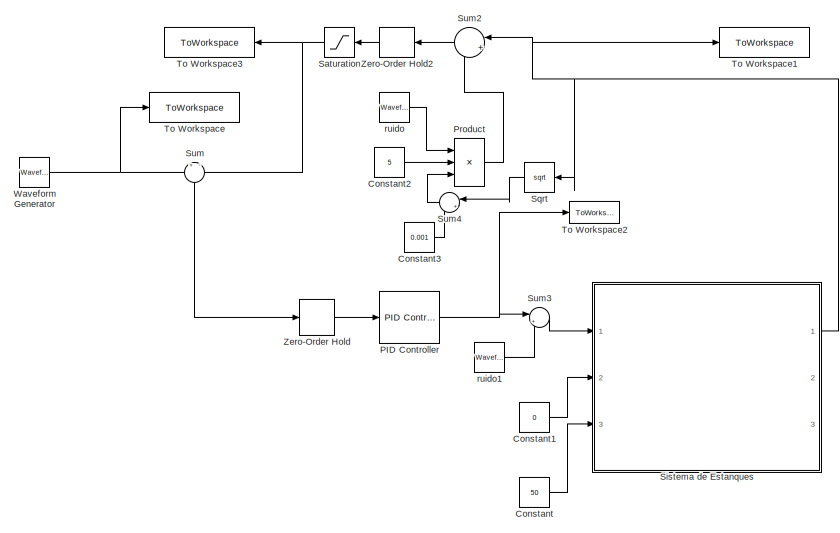
[diagram: root canvas - part 1/2, middle left region]
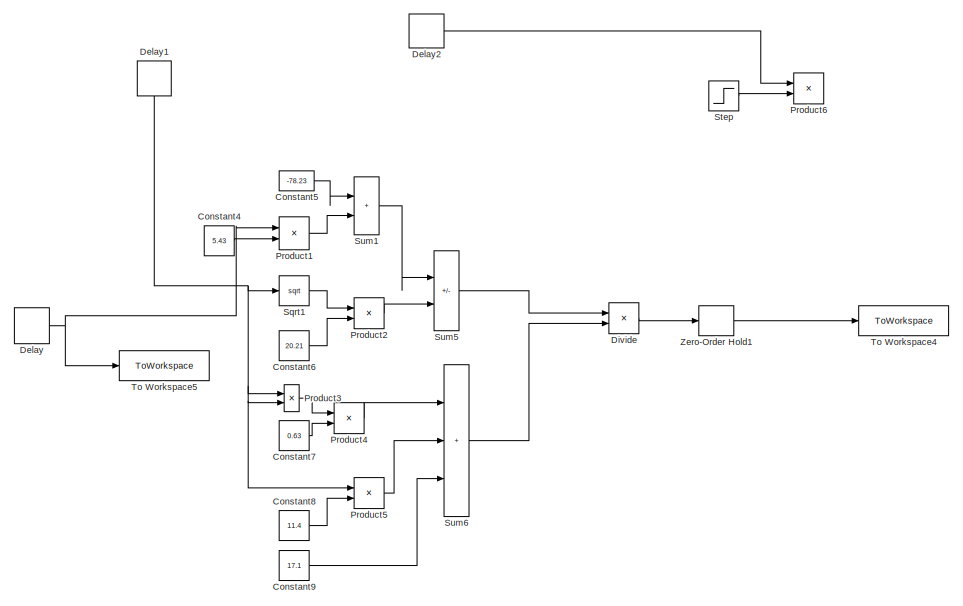
[diagram: root canvas - part 2/2, middle right region]
MODEL slx_602b4497ad94
KIND model
CONFIG AbsTol = auto
CONFIG EnableMultiTasking = on
CONFIG FixedStep = 0.05
CONFIG MaxStep = auto
CONFIG MinStep = auto
CONFIG RelTol = 1e-3
CONFIG SampleTimeConstraint = Unconstrained
CONFIG SolverName = ode3
CONFIG StartTime = 0.0
CONFIG StopTime = 3600*90
BLOCK [Constant] Constant
  Value = 50
BLOCK [Constant] Constant1
  Value = 0
BLOCK [Constant] Constant2
  Value = 5
BLOCK [Constant] Constant3
  Value = 0.001
BLOCK [Constant] Constant4
  Commented = on
  Value = 5.43
BLOCK [Constant] Constant5
  Commented = on
  Value = -78.23
BLOCK [Constant] Constant6
  Commented = on
  Value = 20.21
BLOCK [Constant] Constant7
  Commented = on
  Value = 0.63
BLOCK [Constant] Constant8
  Commented = on
  Value = 11.4
BLOCK [Constant] Constant9
  Commented = on
  Value = 17.1
BLOCK [Delay] Delay
  Commented = on
  DelayLength = 1
  InputPortMap = u0
  Ports = [1, 1]
  SampleTime = 1
BLOCK [Delay] Delay1
  Commented = on
  DelayLength = 1
  InitialCondition = 25
  InputPortMap = u0
  NameLocation = left
  Ports = [1, 1]
  SampleTime = 1
BLOCK [Delay] Delay2
  Commented = on
  InputPortMap = u0
  Ports = [1, 1]
  SampleTime = 5
BLOCK [Product] Divide
  Commented = on
  Inputs = */
  Ports = [2, 1]
BLOCK [Reference] PID Controller  REF=slpidlib/PID Controller
  Ports = [1, 1]
  SourceBlock = slpidlib/PID Controller
  SourceProductBaseCode = SL
  SourceType = PID 1dof
BLOCK [Product] Product
  Inputs = **/
  Ports = [3, 1]
BLOCK [Product] Product1
  Commented = on
  Ports = [2, 1]
BLOCK [Product] Product2
  Commented = on
  Ports = [2, 1]
BLOCK [Product] Product3
  Commented = on
  Ports = [2, 1]
BLOCK [Product] Product4
  Commented = on
  Ports = [2, 1]
BLOCK [Product] Product5
  Commented = on
  Ports = [2, 1]
BLOCK [Product] Product6
  Commented = on
  Ports = [2, 1]
BLOCK [Saturate] Saturation
  LowerLimit = 0
  UpperLimit = inf
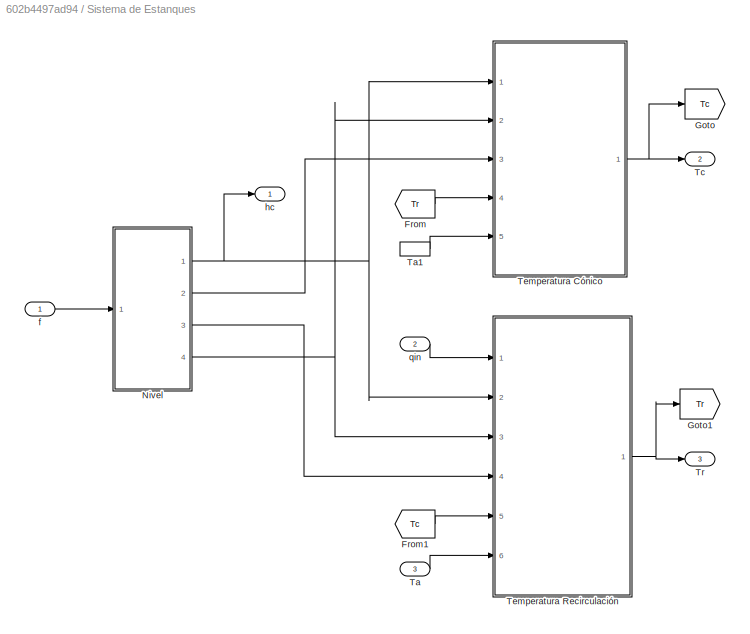
BLOCK [SubSystem] Sistema de Estanques
  Ports = [3, 3]
  RequestExecContextInheritance = off
BLOCK [From] Sistema de Estanques/From
  Commented = on
  GotoTag = Tr
BLOCK [From] Sistema de Estanques/From1
  Commented = on
  GotoTag = Tc
BLOCK [Goto] Sistema de Estanques/Goto
  Commented = on
  GotoTag = Tc
BLOCK [Goto] Sistema de Estanques/Goto1
  Commented = on
  GotoTag = Tr
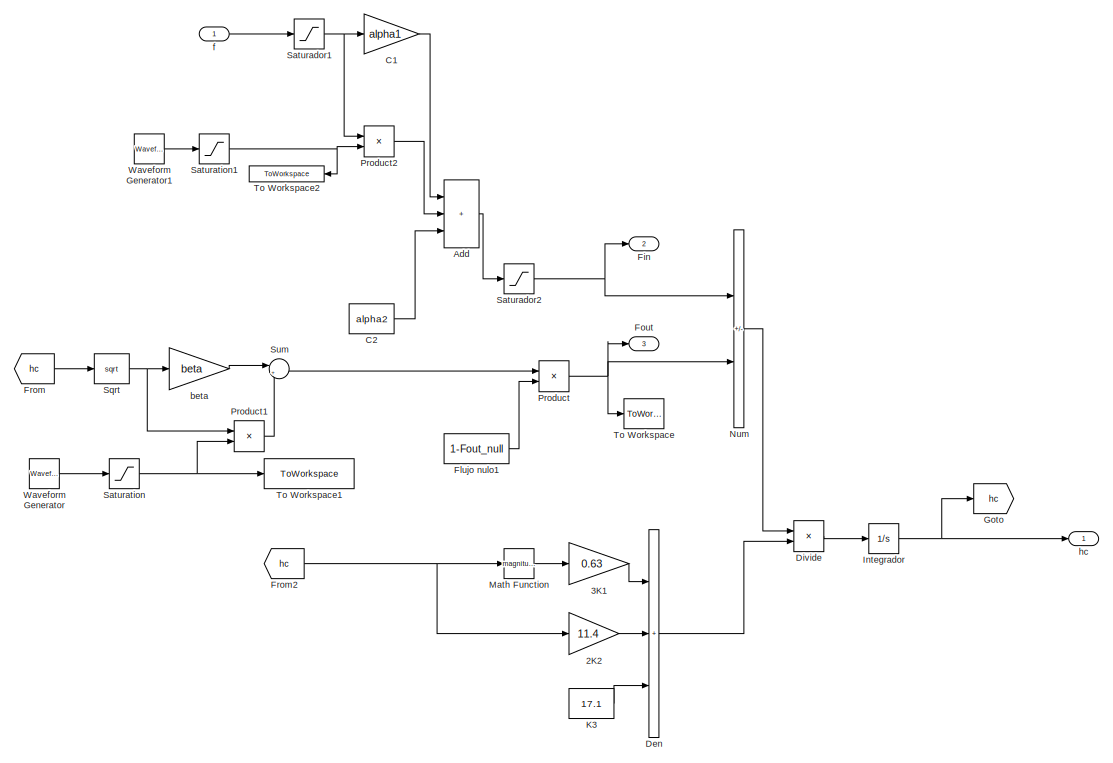
[diagram: Sistema de Estanques/Nivel - part 1/2, full width, middle band]
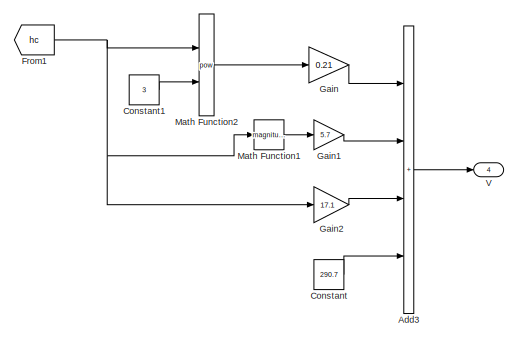
[diagram: Sistema de Estanques/Nivel - part 2/2, bottom center region]
BLOCK [SubSystem] Sistema de Estanques/Nivel
  Ports = [1, 4]
  RequestExecContextInheritance = off
BLOCK [Gain] Sistema de Estanques/Nivel/2K2
  Gain = 11.4
BLOCK [Gain] Sistema de Estanques/Nivel/3K1
  Gain = 0.63
BLOCK [Sum] Sistema de Estanques/Nivel/Add
  IconShape = rectangular
  Inputs = +++
  Ports = [3, 1]
BLOCK [Sum] Sistema de Estanques/Nivel/Add3
  Commented = on
  IconShape = rectangular
  Inputs = ++++
  Ports = [4, 1]
BLOCK [Gain] Sistema de Estanques/Nivel/C1
  Gain = alpha1
BLOCK [Constant] Sistema de Estanques/Nivel/C2
  Value = alpha2
BLOCK [Constant] Sistema de Estanques/Nivel/Constant
  Commented = on
  Value = 290.7
BLOCK [Constant] Sistema de Estanques/Nivel/Constant1
  Commented = on
  Value = 3
BLOCK [Sum] Sistema de Estanques/Nivel/Den
  IconShape = rectangular
  Inputs = +++
  Ports = [3, 1]
BLOCK [Product] Sistema de Estanques/Nivel/Divide
  Inputs = */
  Ports = [2, 1]
BLOCK [Outport] Sistema de Estanques/Nivel/Fin
  Port = 2
BLOCK [Constant] Sistema de Estanques/Nivel/Flujo nulo1
  Value = 1-Fout_null
BLOCK [Outport] Sistema de Estanques/Nivel/Fout
  Port = 3
BLOCK [From] Sistema de Estanques/Nivel/From
  GotoTag = hc
BLOCK [From] Sistema de Estanques/Nivel/From1
  Commented = on
  GotoTag = hc
BLOCK [From] Sistema de Estanques/Nivel/From2
  GotoTag = hc
BLOCK [Gain] Sistema de Estanques/Nivel/Gain
  Commented = on
  Gain = 0.21
BLOCK [Gain] Sistema de Estanques/Nivel/Gain1
  Commented = on
  Gain = 5.7
BLOCK [Gain] Sistema de Estanques/Nivel/Gain2
  Commented = on
  Gain = 17.1
BLOCK [Goto] Sistema de Estanques/Nivel/Goto
  GotoTag = hc
BLOCK [Integrator] Sistema de Estanques/Nivel/Integrador
  InitialCondition = h0+10^(-6)
  LimitOutput = on
  LowerSaturationLimit = 10^(-6)
  Ports = [1, 1]
  ZeroCross = off
BLOCK [Constant] Sistema de Estanques/Nivel/K3
  Value = 17.1
BLOCK [Math] Sistema de Estanques/Nivel/Math Function
  Operator = magnitude^2
  Ports = [1, 1]
  SignedPower = on
BLOCK [Math] Sistema de Estanques/Nivel/Math Function1
  Commented = on
  Operator = magnitude^2
  Ports = [1, 1]
  SignedPower = on
BLOCK [Math] Sistema de Estanques/Nivel/Math Function2
  Commented = on
  Operator = pow
  Ports = [2, 1]
  SignedPower = on
BLOCK [Sum] Sistema de Estanques/Nivel/Num
  IconShape = rectangular
  Inputs = +-
  Ports = [2, 1]
BLOCK [Product] Sistema de Estanques/Nivel/Product
  Ports = [2, 1]
BLOCK [Product] Sistema de Estanques/Nivel/Product1
  Ports = [2, 1]
BLOCK [Product] Sistema de Estanques/Nivel/Product2
  Ports = [2, 1]
BLOCK [Saturate] Sistema de Estanques/Nivel/Saturador1
  LowerLimit = 0
  UpperLimit = 100
  ZeroCross = off
BLOCK [Saturate] Sistema de Estanques/Nivel/Saturador2
  LowerLimit = 0
  UpperLimit = inf
  ZeroCross = off
BLOCK [Saturate] Sistema de Estanques/Nivel/Saturation
  LowerLimit = -1
  UpperLimit = 100
BLOCK [Saturate] Sistema de Estanques/Nivel/Saturation1
  LinearizeAsGain = off
  LowerLimit = -5
  UpperLimit = 0
BLOCK [Sqrt] Sistema de Estanques/Nivel/Sqrt
BLOCK [Sum] Sistema de Estanques/Nivel/Sum
  Inputs = |++
  Ports = [2, 1]
BLOCK [ToWorkspace] Sistema de Estanques/Nivel/To Workspace
  FixptAsFi = on
  MaxDataPoints = inf
  Ports = [1]
  SampleTime = -1
  SaveFormat = Timeseries
  VariableName = f_out
BLOCK [ToWorkspace] Sistema de Estanques/Nivel/To Workspace1
  FixptAsFi = on
  MaxDataPoints = inf
  Ports = [1]
  SampleTime = 1
  SaveFormat = Timeseries
  VariableName = coef_falla_1
BLOCK [ToWorkspace] Sistema de Estanques/Nivel/To Workspace2
  FixptAsFi = on
  MaxDataPoints = inf
  Ports = [1]
  SampleTime = -1
  SaveFormat = Timeseries
  VariableName = coef_falla_2
BLOCK [Outport] Sistema de Estanques/Nivel/V
  Port = 4
BLOCK [Reference] Sistema de Estanques/Nivel/Waveform Generator  REF=simulink/Sources/Waveform
Generator
  Ports = [0, 1]
  SourceBlock = simulink/Sources/Waveform\nGenerator
  SourceProductBaseCode = SL
  SourceType = WaveformGenerator
BLOCK [Reference] Sistema de Estanques/Nivel/Waveform Generator1  REF=simulink/Sources/Waveform
Generator
  Ports = [0, 1]
  SourceBlock = simulink/Sources/Waveform\nGenerator
  SourceProductBaseCode = SL
  SourceType = WaveformGenerator
BLOCK [Gain] Sistema de Estanques/Nivel/beta
  Gain = beta
BLOCK [Inport] Sistema de Estanques/Nivel/f
BLOCK [Outport] Sistema de Estanques/Nivel/hc
BLOCK [Inport] Sistema de Estanques/Ta
  Port = 3
BLOCK [InportShadow] Sistema de Estanques/Ta1
  Port = 3
BLOCK [Outport] Sistema de Estanques/Tc
  Port = 2
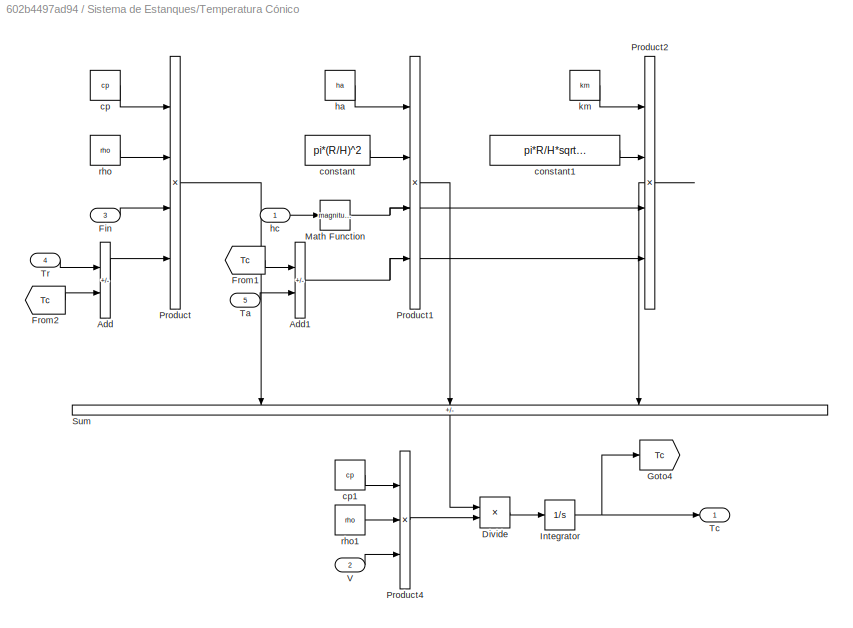
BLOCK [SubSystem] Sistema de Estanques/Temperatura Cónico
  Commented = on
  Ports = [5, 1]
  RequestExecContextInheritance = off
BLOCK [Sum] Sistema de Estanques/Temperatura Cónico/Add
  IconShape = rectangular
  Inputs = +-
  Ports = [2, 1]
BLOCK [Sum] Sistema de Estanques/Temperatura Cónico/Add1
  IconShape = rectangular
  Inputs = +-
  Ports = [2, 1]
BLOCK [Product] Sistema de Estanques/Temperatura Cónico/Divide
  Inputs = */
  Ports = [2, 1]
BLOCK [Inport] Sistema de Estanques/Temperatura Cónico/Fin
  Port = 3
BLOCK [From] Sistema de Estanques/Temperatura Cónico/From1
  GotoTag = Tc
BLOCK [From] Sistema de Estanques/Temperatura Cónico/From2
  GotoTag = Tc
BLOCK [Goto] Sistema de Estanques/Temperatura Cónico/Goto4
  GotoTag = Tc
BLOCK [Integrator] Sistema de Estanques/Temperatura Cónico/Integrator
  InitialCondition = T0c
  Ports = [1, 1]
BLOCK [Math] Sistema de Estanques/Temperatura Cónico/Math Function
  Operator = magnitude^2
  Ports = [1, 1]
  SignedPower = on
BLOCK [Product] Sistema de Estanques/Temperatura Cónico/Product
  Inputs = 4
  Ports = [4, 1]
BLOCK [Product] Sistema de Estanques/Temperatura Cónico/Product1
  Inputs = 4
  Ports = [4, 1]
BLOCK [Product] Sistema de Estanques/Temperatura Cónico/Product2
  Inputs = 4
  Ports = [4, 1]
BLOCK [Product] Sistema de Estanques/Temperatura Cónico/Product4
  Inputs = 3
  Ports = [3, 1]
BLOCK [Sum] Sistema de Estanques/Temperatura Cónico/Sum
  IconShape = rectangular
  Inputs = +--
  NameLocation = left
  Ports = [3, 1]
BLOCK [Inport] Sistema de Estanques/Temperatura Cónico/Ta
  Port = 5
BLOCK [Outport] Sistema de Estanques/Temperatura Cónico/Tc
BLOCK [Inport] Sistema de Estanques/Temperatura Cónico/Tr
  Port = 4
BLOCK [Inport] Sistema de Estanques/Temperatura Cónico/V
  Port = 2
BLOCK [Constant] Sistema de Estanques/Temperatura Cónico/constant
  Value = pi*(R/H)^2
BLOCK [Constant] Sistema de Estanques/Temperatura Cónico/constant1
  Value = pi*R/H*sqrt((R/H)^2+1)/e
BLOCK [Constant] Sistema de Estanques/Temperatura Cónico/cp
  Value = cp
BLOCK [Constant] Sistema de Estanques/Temperatura Cónico/cp1
  Value = cp
BLOCK [Constant] Sistema de Estanques/Temperatura Cónico/ha
  Value = ha
BLOCK [Inport] Sistema de Estanques/Temperatura Cónico/hc
BLOCK [Constant] Sistema de Estanques/Temperatura Cónico/km
  Value = km
BLOCK [Constant] Sistema de Estanques/Temperatura Cónico/rho
  Value = rho
BLOCK [Constant] Sistema de Estanques/Temperatura Cónico/rho1
  Value = rho
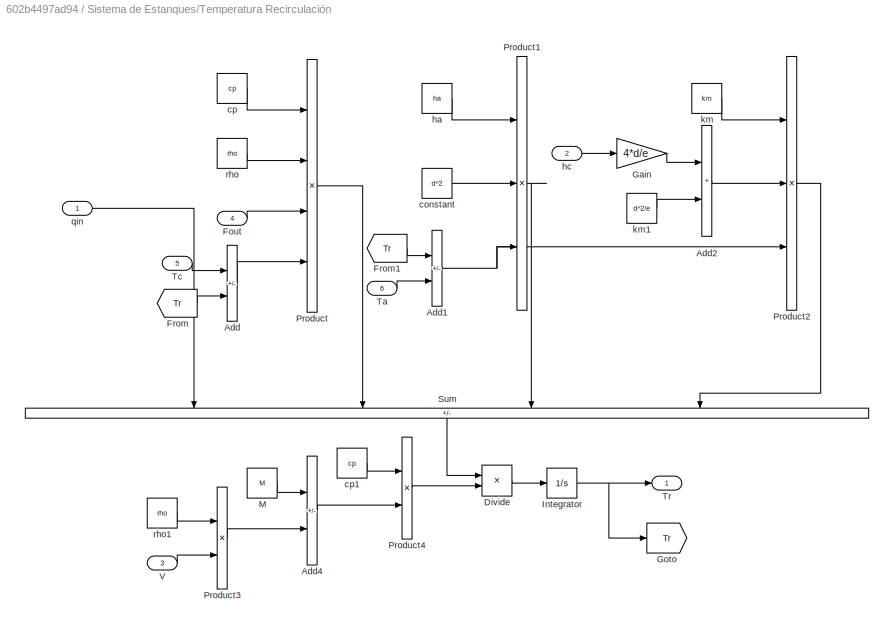
BLOCK [SubSystem] Sistema de Estanques/Temperatura Recirculación
  Commented = on
  Ports = [6, 1]
  RequestExecContextInheritance = off
BLOCK [Sum] Sistema de Estanques/Temperatura Recirculación/Add
  IconShape = rectangular
  Inputs = +-
  Ports = [2, 1]
BLOCK [Sum] Sistema de Estanques/Temperatura Recirculación/Add1
  IconShape = rectangular
  Inputs = +-
  Ports = [2, 1]
BLOCK [Sum] Sistema de Estanques/Temperatura Recirculación/Add2
  IconShape = rectangular
  Ports = [2, 1]
BLOCK [Sum] Sistema de Estanques/Temperatura Recirculación/Add4
  IconShape = rectangular
  Inputs = +-
  Ports = [2, 1]
BLOCK [Product] Sistema de Estanques/Temperatura Recirculación/Divide
  Inputs = */
  Ports = [2, 1]
BLOCK [Inport] Sistema de Estanques/Temperatura Recirculación/Fout
  Port = 4
BLOCK [From] Sistema de Estanques/Temperatura Recirculación/From
  GotoTag = Tr
BLOCK [From] Sistema de Estanques/Temperatura Recirculación/From1
  GotoTag = Tr
BLOCK [Gain] Sistema de Estanques/Temperatura Recirculación/Gain
  Gain = 4*d/e
BLOCK [Goto] Sistema de Estanques/Temperatura Recirculación/Goto
  GotoTag = Tr
BLOCK [Integrator] Sistema de Estanques/Temperatura Recirculación/Integrator
  InitialCondition = T0r
  Ports = [1, 1]
BLOCK [Constant] Sistema de Estanques/Temperatura Recirculación/M
  Value = M
BLOCK [Product] Sistema de Estanques/Temperatura Recirculación/Product
  Inputs = 4
  Ports = [4, 1]
BLOCK [Product] Sistema de Estanques/Temperatura Recirculación/Product1
  Inputs = 3
  Ports = [3, 1]
BLOCK [Product] Sistema de Estanques/Temperatura Recirculación/Product2
  Inputs = 3
  Ports = [3, 1]
BLOCK [Product] Sistema de Estanques/Temperatura Recirculación/Product3
  Ports = [2, 1]
BLOCK [Product] Sistema de Estanques/Temperatura Recirculación/Product4
  Ports = [2, 1]
BLOCK [Sum] Sistema de Estanques/Temperatura Recirculación/Sum
  IconShape = rectangular
  Inputs = ++--
  NameLocation = left
  Ports = [4, 1]
BLOCK [Inport] Sistema de Estanques/Temperatura Recirculación/Ta
  Port = 6
BLOCK [Inport] Sistema de Estanques/Temperatura Recirculación/Tc
  Port = 5
BLOCK [Outport] Sistema de Estanques/Temperatura Recirculación/Tr
BLOCK [Inport] Sistema de Estanques/Temperatura Recirculación/V
  Port = 3
BLOCK [Constant] Sistema de Estanques/Temperatura Recirculación/constant
  Value = d^2
BLOCK [Constant] Sistema de Estanques/Temperatura Recirculación/cp
  Value = cp
BLOCK [Constant] Sistema de Estanques/Temperatura Recirculación/cp1
  Value = cp
BLOCK [Constant] Sistema de Estanques/Temperatura Recirculación/ha
  Value = ha
BLOCK [Inport] Sistema de Estanques/Temperatura Recirculación/hc
  Port = 2
BLOCK [Constant] Sistema de Estanques/Temperatura Recirculación/km
  Value = km
BLOCK [Constant] Sistema de Estanques/Temperatura Recirculación/km1
  Value = d^2/e
BLOCK [Inport] Sistema de Estanques/Temperatura Recirculación/qin
BLOCK [Constant] Sistema de Estanques/Temperatura Recirculación/rho
  Value = rho
BLOCK [Constant] Sistema de Estanques/Temperatura Recirculación/rho1
  Value = rho
BLOCK [Outport] Sistema de Estanques/Tr
  Port = 3
BLOCK [Inport] Sistema de Estanques/f
BLOCK [Outport] Sistema de Estanques/hc
BLOCK [Inport] Sistema de Estanques/qin
  Port = 2
BLOCK [Sqrt] Sqrt
BLOCK [Sqrt] Sqrt1
  Commented = on
BLOCK [Step] Step
  After = 0
  Before = 1
  Commented = on
  SampleTime = 0
  Time = 5
BLOCK [Sum] Sum
  Inputs = +|-
  NameLocation = left
  Ports = [2, 1]
BLOCK [Sum] Sum1
  Commented = on
  IconShape = rectangular
  Inputs = |++
  Ports = [2, 1]
BLOCK [Sum] Sum2
  Inputs = |++
  Ports = [2, 1]
BLOCK [Sum] Sum3
  Inputs = |++
  NameLocation = top
  Ports = [2, 1]
BLOCK [Sum] Sum4
  Inputs = |++
  Ports = [2, 1]
BLOCK [Sum] Sum5
  Commented = on
  IconShape = rectangular
  Inputs = |+-
  Ports = [2, 1]
BLOCK [Sum] Sum6
  Commented = on
  IconShape = rectangular
  Inputs = |+++
  Ports = [3, 1]
BLOCK [ToWorkspace] To Workspace
  FixptAsFi = on
  MaxDataPoints = inf
  NameLocation = top
  Ports = [1]
  SampleTime = 1
  SaveFormat = Timeseries
  VariableName = REFERENCIA
BLOCK [ToWorkspace] To Workspace1
  FixptAsFi = on
  MaxDataPoints = inf
  Ports = [1]
  SampleTime = 1
  SaveFormat = Timeseries
  VariableName = Actual_hc
BLOCK [ToWorkspace] To Workspace2
  FixptAsFi = on
  MaxDataPoints = inf
  Ports = [1]
  SampleTime = 1
  SaveFormat = Timeseries
  VariableName = f_pid
BLOCK [ToWorkspace] To Workspace3
  FixptAsFi = on
  MaxDataPoints = inf
  Ports = [1]
  SampleTime = 1
  SaveFormat = Timeseries
  VariableName = Mesuared_hc
BLOCK [ToWorkspace] To Workspace4
  Commented = on
  FixptAsFi = on
  MaxDataPoints = inf
  Ports = [1]
  SampleTime = -1
  SaveFormat = Timeseries
  VariableName = hc_dot_hat
BLOCK [ToWorkspace] To Workspace5
  Commented = on
  FixptAsFi = on
  MaxDataPoints = inf
  Ports = [1]
  SampleTime = -1
  SaveFormat = Timeseries
  VariableName = fm2
BLOCK [Reference] Waveform Generator  REF=simulink/Sources/Waveform
Generator
  Ports = [0, 1]
  SourceBlock = simulink/Sources/Waveform\nGenerator
  SourceProductBaseCode = SL
  SourceType = WaveformGenerator
BLOCK [ZeroOrderHold] Zero-Order Hold
  SampleTime = 5
BLOCK [ZeroOrderHold] Zero-Order Hold1
  Commented = on
  SampleTime = 5
BLOCK [ZeroOrderHold] Zero-Order Hold2
  SampleTime = 5
BLOCK [Reference] ruido  REF=simulink/Sources/Waveform
Generator
  Ports = [0, 1]
  SourceBlock = simulink/Sources/Waveform\nGenerator
  SourceProductBaseCode = SL
  SourceType = WaveformGenerator
BLOCK [Reference] ruido1  REF=simulink/Sources/Waveform
Generator
  Ports = [0, 1]
  SourceBlock = simulink/Sources/Waveform\nGenerator
  SourceProductBaseCode = SL
  SourceType = WaveformGenerator
LINE Constant1:1 -> Sistema de Estanques:2
LINE Constant2:1 -> Product:2
LINE Constant3:1 -> Sum4:2
LINE Constant4:1 -> Product1:2
LINE Constant5:1 -> Sum1:1
LINE Constant6:1 -> Product2:2
LINE Constant7:1 -> Product4:2
LINE Constant8:1 -> Product5:2
LINE Constant9:1 -> Sum6:3
LINE Constant:1 -> Sistema de Estanques:3
NET Delay1:1 -> Product3:1, Product3:2, Product5:1, Sqrt1:1
LINE Delay2:1 -> Product6:1
NET Delay:1 -> Product1:1, To Workspace5:1
LINE Divide:1 -> Zero-Order Hold1:1
NET PID Controller:1 -> Sum3:1, To Workspace2:1
LINE Product1:1 -> Sum1:2
LINE Product2:1 -> Sum5:2
LINE Product3:1 -> Product4:1
LINE Product4:1 -> Sum6:1
LINE Product5:1 -> Sum6:2
LINE Product:1 -> Sum2:2
NET Saturation:1 -> Sum:2, To Workspace3:1
LINE Sistema de Estanques/From1:1 -> Sistema de Estanques/Temperatura Recirculación:5
LINE Sistema de Estanques/From:1 -> Sistema de Estanques/Temperatura Cónico:4
LINE Sistema de Estanques/Nivel/2K2:1 -> Sistema de Estanques/Nivel/Den:2
LINE Sistema de Estanques/Nivel/3K1:1 -> Sistema de Estanques/Nivel/Den:1
LINE Sistema de Estanques/Nivel/Add3:1 -> Sistema de Estanques/Nivel/V:1
LINE Sistema de Estanques/Nivel/Add:1 -> Sistema de Estanques/Nivel/Saturador2:1
LINE Sistema de Estanques/Nivel/C1:1 -> Sistema de Estanques/Nivel/Add:1
LINE Sistema de Estanques/Nivel/C2:1 -> Sistema de Estanques/Nivel/Add:3
LINE Sistema de Estanques/Nivel/Constant1:1 -> Sistema de Estanques/Nivel/Math Function2:2
LINE Sistema de Estanques/Nivel/Constant:1 -> Sistema de Estanques/Nivel/Add3:4
LINE Sistema de Estanques/Nivel/Den:1 -> Sistema de Estanques/Nivel/Divide:2
LINE Sistema de Estanques/Nivel/Divide:1 -> Sistema de Estanques/Nivel/Integrador:1
LINE Sistema de Estanques/Nivel/Flujo nulo1:1 -> Sistema de Estanques/Nivel/Product:2
NET Sistema de Estanques/Nivel/From1:1 -> Sistema de Estanques/Nivel/Gain2:1, Sistema de Estanques/Nivel/Math Function1:1, Sistema de Estanques/Nivel/Math Function2:1
NET Sistema de Estanques/Nivel/From2:1 -> Sistema de Estanques/Nivel/2K2:1, Sistema de Estanques/Nivel/Math Function:1
LINE Sistema de Estanques/Nivel/From:1 -> Sistema de Estanques/Nivel/Sqrt:1
LINE Sistema de Estanques/Nivel/Gain1:1 -> Sistema de Estanques/Nivel/Add3:2
LINE Sistema de Estanques/Nivel/Gain2:1 -> Sistema de Estanques/Nivel/Add3:3
LINE Sistema de Estanques/Nivel/Gain:1 -> Sistema de Estanques/Nivel/Add3:1
NET Sistema de Estanques/Nivel/Integrador:1 -> Sistema de Estanques/Nivel/Goto:1, Sistema de Estanques/Nivel/hc:1
LINE Sistema de Estanques/Nivel/K3:1 -> Sistema de Estanques/Nivel/Den:3
LINE Sistema de Estanques/Nivel/Math Function1:1 -> Sistema de Estanques/Nivel/Gain1:1
LINE Sistema de Estanques/Nivel/Math Function2:1 -> Sistema de Estanques/Nivel/Gain:1
LINE Sistema de Estanques/Nivel/Math Function:1 -> Sistema de Estanques/Nivel/3K1:1
LINE Sistema de Estanques/Nivel/Num:1 -> Sistema de Estanques/Nivel/Divide:1
LINE Sistema de Estanques/Nivel/Product1:1 -> Sistema de Estanques/Nivel/Sum:2
LINE Sistema de Estanques/Nivel/Product2:1 -> Sistema de Estanques/Nivel/Add:2
NET Sistema de Estanques/Nivel/Product:1 -> Sistema de Estanques/Nivel/Fout:1, Sistema de Estanques/Nivel/Num:2, Sistema de Estanques/Nivel/To Workspace:1
NET Sistema de Estanques/Nivel/Saturador1:1 -> Sistema de Estanques/Nivel/C1:1, Sistema de Estanques/Nivel/Product2:1
NET Sistema de Estanques/Nivel/Saturador2:1 -> Sistema de Estanques/Nivel/Fin:1, Sistema de Estanques/Nivel/Num:1
NET Sistema de Estanques/Nivel/Saturation1:1 -> Sistema de Estanques/Nivel/Product2:2, Sistema de Estanques/Nivel/To Workspace2:1
NET Sistema de Estanques/Nivel/Saturation:1 -> Sistema de Estanques/Nivel/Product1:2, Sistema de Estanques/Nivel/To Workspace1:1
NET Sistema de Estanques/Nivel/Sqrt:1 -> Sistema de Estanques/Nivel/Product1:1, Sistema de Estanques/Nivel/beta:1
LINE Sistema de Estanques/Nivel/Sum:1 -> Sistema de Estanques/Nivel/Product:1
LINE Sistema de Estanques/Nivel/Waveform Generator1:1 -> Sistema de Estanques/Nivel/Saturation1:1
LINE Sistema de Estanques/Nivel/Waveform Generator:1 -> Sistema de Estanques/Nivel/Saturation:1
LINE Sistema de Estanques/Nivel/beta:1 -> Sistema de Estanques/Nivel/Sum:1
LINE Sistema de Estanques/Nivel/f:1 -> Sistema de Estanques/Nivel/Saturador1:1
NET Sistema de Estanques/Nivel:1 -> Sistema de Estanques/Temperatura Cónico:1, Sistema de Estanques/Temperatura Recirculación:2, Sistema de Estanques/hc:1
LINE Sistema de Estanques/Nivel:2 -> Sistema de Estanques/Temperatura Cónico:3
LINE Sistema de Estanques/Nivel:3 -> Sistema de Estanques/Temperatura Recirculación:4
NET Sistema de Estanques/Nivel:4 -> Sistema de Estanques/Temperatura Cónico:2, Sistema de Estanques/Temperatura Recirculación:3
LINE Sistema de Estanques/Ta1:1 -> Sistema de Estanques/Temperatura Cónico:5
LINE Sistema de Estanques/Ta:1 -> Sistema de Estanques/Temperatura Recirculación:6
NET Sistema de Estanques/Temperatura Cónico/Add1:1 -> Sistema de Estanques/Temperatura Cónico/Product1:4, Sistema de Estanques/Temperatura Cónico/Product2:4
LINE Sistema de Estanques/Temperatura Cónico/Add:1 -> Sistema de Estanques/Temperatura Cónico/Product:4
LINE Sistema de Estanques/Temperatura Cónico/Divide:1 -> Sistema de Estanques/Temperatura Cónico/Integrator:1
LINE Sistema de Estanques/Temperatura Cónico/Fin:1 -> Sistema de Estanques/Temperatura Cónico/Product:3
LINE Sistema de Estanques/Temperatura Cónico/From1:1 -> Sistema de Estanques/Temperatura Cónico/Add1:1
LINE Sistema de Estanques/Temperatura Cónico/From2:1 -> Sistema de Estanques/Temperatura Cónico/Add:2
NET Sistema de Estanques/Temperatura Cónico/Integrator:1 -> Sistema de Estanques/Temperatura Cónico/Goto4:1, Sistema de Estanques/Temperatura Cónico/Tc:1
NET Sistema de Estanques/Temperatura Cónico/Math Function:1 -> Sistema de Estanques/Temperatura Cónico/Product1:3, Sistema de Estanques/Temperatura Cónico/Product2:3
LINE Sistema de Estanques/Temperatura Cónico/Product1:1 -> Sistema de Estanques/Temperatura Cónico/Sum:2
LINE Sistema de Estanques/Temperatura Cónico/Product2:1 -> Sistema de Estanques/Temperatura Cónico/Sum:3
LINE Sistema de Estanques/Temperatura Cónico/Product4:1 -> Sistema de Estanques/Temperatura Cónico/Divide:2
LINE Sistema de Estanques/Temperatura Cónico/Product:1 -> Sistema de Estanques/Temperatura Cónico/Sum:1
LINE Sistema de Estanques/Temperatura Cónico/Sum:1 -> Sistema de Estanques/Temperatura Cónico/Divide:1
LINE Sistema de Estanques/Temperatura Cónico/Ta:1 -> Sistema de Estanques/Temperatura Cónico/Add1:2
LINE Sistema de Estanques/Temperatura Cónico/Tr:1 -> Sistema de Estanques/Temperatura Cónico/Add:1
LINE Sistema de Estanques/Temperatura Cónico/V:1 -> Sistema de Estanques/Temperatura Cónico/Product4:3
LINE Sistema de Estanques/Temperatura Cónico/constant1:1 -> Sistema de Estanques/Temperatura Cónico/Product2:2
LINE Sistema de Estanques/Temperatura Cónico/constant:1 -> Sistema de Estanques/Temperatura Cónico/Product1:2
LINE Sistema de Estanques/Temperatura Cónico/cp1:1 -> Sistema de Estanques/Temperatura Cónico/Product4:1
LINE Sistema de Estanques/Temperatura Cónico/cp:1 -> Sistema de Estanques/Temperatura Cónico/Product:1
LINE Sistema de Estanques/Temperatura Cónico/ha:1 -> Sistema de Estanques/Temperatura Cónico/Product1:1
LINE Sistema de Estanques/Temperatura Cónico/hc:1 -> Sistema de Estanques/Temperatura Cónico/Math Function:1
LINE Sistema de Estanques/Temperatura Cónico/km:1 -> Sistema de Estanques/Temperatura Cónico/Product2:1
LINE Sistema de Estanques/Temperatura Cónico/rho1:1 -> Sistema de Estanques/Temperatura Cónico/Product4:2
LINE Sistema de Estanques/Temperatura Cónico/rho:1 -> Sistema de Estanques/Temperatura Cónico/Product:2
NET Sistema de Estanques/Temperatura Cónico:1 -> Sistema de Estanques/Goto:1, Sistema de Estanques/Tc:1
NET Sistema de Estanques/Temperatura Recirculación/Add1:1 -> Sistema de Estanques/Temperatura Recirculación/Product1:3, Sistema de Estanques/Temperatura Recirculación/Product2:3
LINE Sistema de Estanques/Temperatura Recirculación/Add2:1 -> Sistema de Estanques/Temperatura Recirculación/Product2:2
LINE Sistema de Estanques/Temperatura Recirculación/Add4:1 -> Sistema de Estanques/Temperatura Recirculación/Product4:2
LINE Sistema de Estanques/Temperatura Recirculación/Add:1 -> Sistema de Estanques/Temperatura Recirculación/Product:4
LINE Sistema de Estanques/Temperatura Recirculación/Divide:1 -> Sistema de Estanques/Temperatura Recirculación/Integrator:1
LINE Sistema de Estanques/Temperatura Recirculación/Fout:1 -> Sistema de Estanques/Temperatura Recirculación/Product:3
LINE Sistema de Estanques/Temperatura Recirculación/From1:1 -> Sistema de Estanques/Temperatura Recirculación/Add1:1
LINE Sistema de Estanques/Temperatura Recirculación/From:1 -> Sistema de Estanques/Temperatura Recirculación/Add:2
LINE Sistema de Estanques/Temperatura Recirculación/Gain:1 -> Sistema de Estanques/Temperatura Recirculación/Add2:1
NET Sistema de Estanques/Temperatura Recirculación/Integrator:1 -> Sistema de Estanques/Temperatura Recirculación/Goto:1, Sistema de Estanques/Temperatura Recirculación/Tr:1
LINE Sistema de Estanques/Temperatura Recirculación/M:1 -> Sistema de Estanques/Temperatura Recirculación/Add4:1
LINE Sistema de Estanques/Temperatura Recirculación/Product1:1 -> Sistema de Estanques/Temperatura Recirculación/Sum:3
LINE Sistema de Estanques/Temperatura Recirculación/Product2:1 -> Sistema de Estanques/Temperatura Recirculación/Sum:4
LINE Sistema de Estanques/Temperatura Recirculación/Product3:1 -> Sistema de Estanques/Temperatura Recirculación/Add4:2
LINE Sistema de Estanques/Temperatura Recirculación/Product4:1 -> Sistema de Estanques/Temperatura Recirculación/Divide:2
LINE Sistema de Estanques/Temperatura Recirculación/Product:1 -> Sistema de Estanques/Temperatura Recirculación/Sum:2
LINE Sistema de Estanques/Temperatura Recirculación/Sum:1 -> Sistema de Estanques/Temperatura Recirculación/Divide:1
LINE Sistema de Estanques/Temperatura Recirculación/Ta:1 -> Sistema de Estanques/Temperatura Recirculación/Add1:2
LINE Sistema de Estanques/Temperatura Recirculación/Tc:1 -> Sistema de Estanques/Temperatura Recirculación/Add:1
LINE Sistema de Estanques/Temperatura Recirculación/V:1 -> Sistema de Estanques/Temperatura Recirculación/Product3:2
LINE Sistema de Estanques/Temperatura Recirculación/constant:1 -> Sistema de Estanques/Temperatura Recirculación/Product1:2
LINE Sistema de Estanques/Temperatura Recirculación/cp1:1 -> Sistema de Estanques/Temperatura Recirculación/Product4:1
LINE Sistema de Estanques/Temperatura Recirculación/cp:1 -> Sistema de Estanques/Temperatura Recirculación/Product:1
LINE Sistema de Estanques/Temperatura Recirculación/ha:1 -> Sistema de Estanques/Temperatura Recirculación/Product1:1
LINE Sistema de Estanques/Temperatura Recirculación/hc:1 -> Sistema de Estanques/Temperatura Recirculación/Gain:1
LINE Sistema de Estanques/Temperatura Recirculación/km1:1 -> Sistema de Estanques/Temperatura Recirculación/Add2:2
LINE Sistema de Estanques/Temperatura Recirculación/km:1 -> Sistema de Estanques/Temperatura Recirculación/Product2:1
LINE Sistema de Estanques/Temperatura Recirculación/qin:1 -> Sistema de Estanques/Temperatura Recirculación/Sum:1
LINE Sistema de Estanques/Temperatura Recirculación/rho1:1 -> Sistema de Estanques/Temperatura Recirculación/Product3:1
LINE Sistema de Estanques/Temperatura Recirculación/rho:1 -> Sistema de Estanques/Temperatura Recirculación/Product:2
NET Sistema de Estanques/Temperatura Recirculación:1 -> Sistema de Estanques/Goto1:1, Sistema de Estanques/Tr:1
LINE Sistema de Estanques/f:1 -> Sistema de Estanques/Nivel:1
LINE Sistema de Estanques/qin:1 -> Sistema de Estanques/Temperatura Recirculación:1
NET Sistema de Estanques:1 -> Sqrt:1, Sum2:1, To Workspace1:1
LINE Sqrt1:1 -> Product2:1
LINE Sqrt:1 -> Sum4:1
LINE Step:1 -> Product6:2
LINE Sum1:1 -> Sum5:1
LINE Sum2:1 -> Zero-Order Hold2:1
LINE Sum3:1 -> Sistema de Estanques:1
LINE Sum4:1 -> Product:3
LINE Sum5:1 -> Divide:1
LINE Sum6:1 -> Divide:2
LINE Sum:1 -> Zero-Order Hold:1
NET Waveform Generator:1 -> Sum:1, To Workspace:1
LINE Zero-Order Hold1:1 -> To Workspace4:1
LINE Zero-Order Hold2:1 -> Saturation:1
LINE Zero-Order Hold:1 -> PID Controller:1
LINE ruido1:1 -> Sum3:2
LINE ruido:1 -> Product:1
note: NET lines group one-source signal fan-out (src -> all destinations, sorted); 1:1 wires keep LINE
